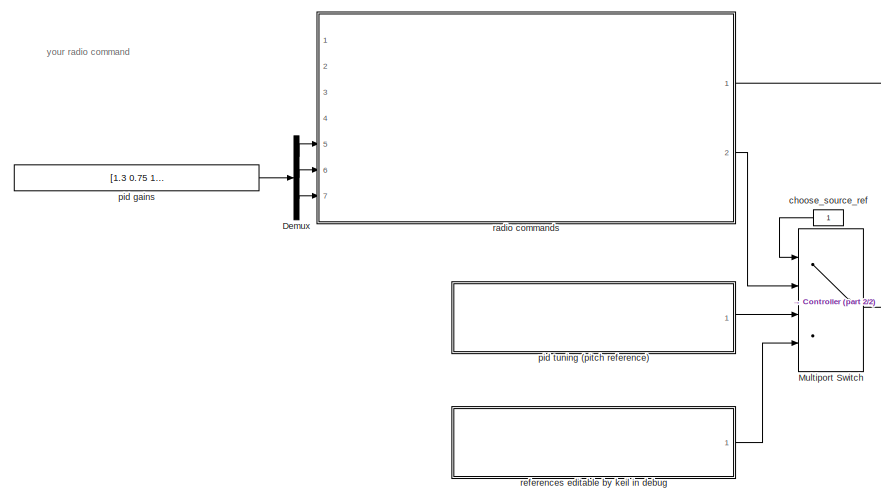
[diagram: root canvas - part 1/2, middle left region]
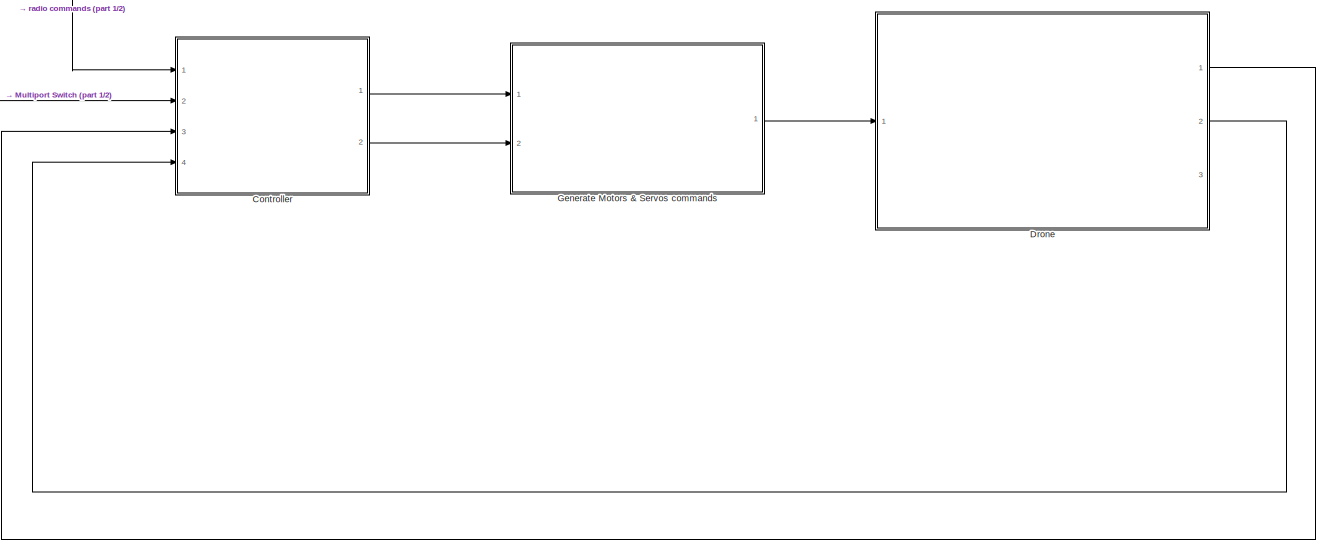
[diagram: root canvas - part 2/2, middle right region]
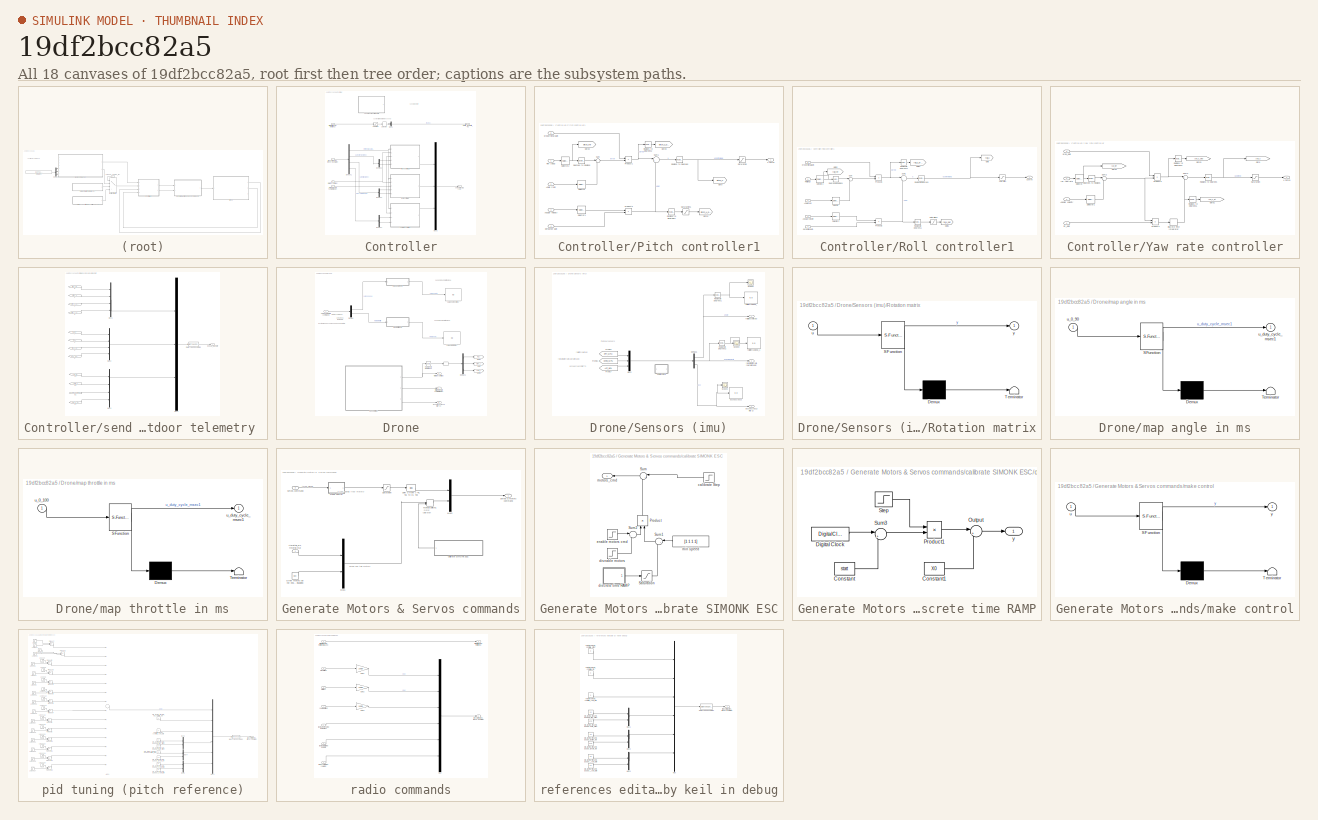
[diagram: thumbnail index - all 18 canvases of the model, root first then tree order]
MODEL slx_19df2bcc82a5
KIND model
BLOCK [SubSystem] Controller
  Ports = [4, 2]
  RequestExecContextInheritance = off
BLOCK [Demux] Controller/Demux1
  DisplayOption = bar
  Outputs = [3 2 2 2]
  Ports = [1, 4]
BLOCK [Demux] Controller/Demux2
  DisplayOption = bar
  Outputs = 2
  Ports = [1, 2]
BLOCK [Demux] Controller/Demux3
  DisplayOption = bar
  Outputs = 2
  Ports = [1, 2]
BLOCK [Demux] Controller/Demux4
  DisplayOption = bar
  Outputs = 2
  Ports = [1, 2]
BLOCK [Mux] Controller/Mux1
  DisplayOption = bar
  Inputs = 2
  Ports = [2, 1]
BLOCK [Mux] Controller/Mux2
  DisplayOption = bar
  Inputs = 3
  Ports = [3, 1]
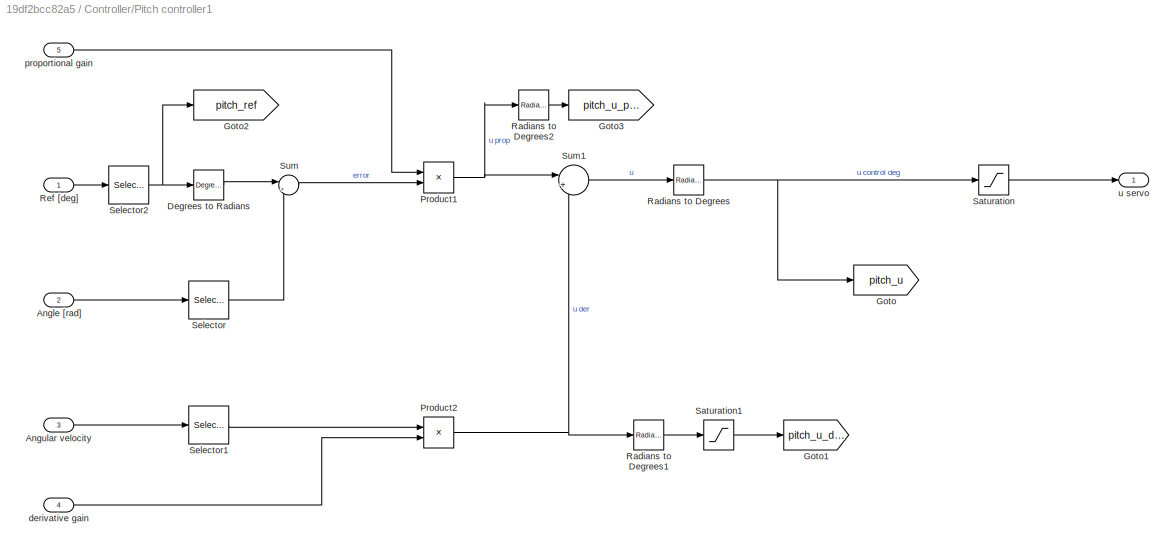
BLOCK [SubSystem] Controller/Pitch controller1
  Ports = [5, 1]
  RequestExecContextInheritance = off
BLOCK [Inport] Controller/Pitch controller1/Angle [rad]
  IconDisplay = Port number
  Port = 2
BLOCK [Inport] Controller/Pitch controller1/Angular velocity
  IconDisplay = Port number
  Port = 3
BLOCK [Reference] Controller/Pitch controller1/Degrees to Radians  REF=simulink_extras/Transformations/Degrees to
Radians
  Ports = [1, 1]
  SourceBlock = simulink_extras/Transformations/Degrees to\nRadians
  SourceType = DegreesToRadians
BLOCK [Goto] Controller/Pitch controller1/Goto
  GotoTag = pitch_u
  TagVisibility = global
BLOCK [Goto] Controller/Pitch controller1/Goto1
  GotoTag = pitch_u_der
  TagVisibility = global
BLOCK [Goto] Controller/Pitch controller1/Goto2
  GotoTag = pitch_ref
  TagVisibility = global
BLOCK [Goto] Controller/Pitch controller1/Goto3
  GotoTag = pitch_u_prop
  TagVisibility = global
BLOCK [Product] Controller/Pitch controller1/Product1
  InputSameDT = off
  OutDataTypeStr = Inherit: Inherit via internal rule
  Ports = [2, 1]
  RndMeth = Floor
  SaturateOnIntegerOverflow = off
BLOCK [Product] Controller/Pitch controller1/Product2
  InputSameDT = off
  OutDataTypeStr = Inherit: Inherit via internal rule
  Ports = [2, 1]
  RndMeth = Floor
  SaturateOnIntegerOverflow = off
BLOCK [Reference] Controller/Pitch controller1/Radians to Degrees  REF=simulink_extras/Transformations/Radians
to Degrees
  Ports = [1, 1]
  SourceBlock = simulink_extras/Transformations/Radians\nto Degrees
  SourceType = RadiansToDegrees
BLOCK [Reference] Controller/Pitch controller1/Radians to Degrees1  REF=simulink_extras/Transformations/Radians
to Degrees
  Ports = [1, 1]
  SourceBlock = simulink_extras/Transformations/Radians\nto Degrees
  SourceType = RadiansToDegrees
BLOCK [Reference] Controller/Pitch controller1/Radians to Degrees2  REF=simulink_extras/Transformations/Radians
to Degrees
  Ports = [1, 1]
  SourceBlock = simulink_extras/Transformations/Radians\nto Degrees
  SourceType = RadiansToDegrees
BLOCK [Inport] Controller/Pitch controller1/Ref [deg]
  IconDisplay = Port number
BLOCK [Saturate] Controller/Pitch controller1/Saturation
  InputPortMap = u0
  LowerLimit = -45
  Ports = [1, 1]
  UpperLimit = 45
BLOCK [Saturate] Controller/Pitch controller1/Saturation1
  InputPortMap = u0
  LowerLimit = -100
  Ports = [1, 1]
  UpperLimit = 100
BLOCK [Selector] Controller/Pitch controller1/Selector
  Indices = 2
  InputPortWidth = 3
  Ports = [1, 1]
BLOCK [Selector] Controller/Pitch controller1/Selector1
  Indices = 2
  InputPortWidth = 3
  Ports = [1, 1]
BLOCK [Selector] Controller/Pitch controller1/Selector2
  InputPortWidth = 3
  Ports = [1, 1]
BLOCK [Sum] Controller/Pitch controller1/Sum
  IconShape = round
  InputSameDT = off
  Inputs = |+-
  OutDataTypeStr = Inherit: Inherit via internal rule
  Ports = [2, 1]
  SaturateOnIntegerOverflow = off
BLOCK [Sum] Controller/Pitch controller1/Sum1
  IconShape = round
  InputSameDT = off
  Inputs = |+-
  OutDataTypeStr = Inherit: Inherit via internal rule
  Ports = [2, 1]
  SaturateOnIntegerOverflow = off
BLOCK [Inport] Controller/Pitch controller1/derivative gain
  IconDisplay = Port number
  Port = 4
BLOCK [Inport] Controller/Pitch controller1/proportional gain
  IconDisplay = Port number
  Port = 5
BLOCK [Outport] Controller/Pitch controller1/u servo
  IconDisplay = Port number
BLOCK [SubSystem] Controller/Roll controller1
  Ports = [5, 1]
  RequestExecContextInheritance = off
BLOCK [Inport] Controller/Roll controller1/Angle [rad]
  IconDisplay = Port number
  Port = 2
BLOCK [Inport] Controller/Roll controller1/Angular velocity
  IconDisplay = Port number
  Port = 3
BLOCK [Reference] Controller/Roll controller1/Degrees to Radians  REF=simulink_extras/Transformations/Degrees to
Radians
  Ports = [1, 1]
  SourceBlock = simulink_extras/Transformations/Degrees to\nRadians
  SourceType = DegreesToRadians
BLOCK [Goto] Controller/Roll controller1/Goto
  GotoTag = roll_u
  TagVisibility = global
BLOCK [Goto] Controller/Roll controller1/Goto1
  GotoTag = roll_u_der
  TagVisibility = global
BLOCK [Goto] Controller/Roll controller1/Goto2
  GotoTag = roll_ref
  TagVisibility = global
BLOCK [Goto] Controller/Roll controller1/Goto3
  GotoTag = roll_u_prop
  TagVisibility = global
BLOCK [Product] Controller/Roll controller1/Product1
  InputSameDT = off
  OutDataTypeStr = Inherit: Inherit via internal rule
  Ports = [2, 1]
  RndMeth = Floor
  SaturateOnIntegerOverflow = off
BLOCK [Product] Controller/Roll controller1/Product2
  InputSameDT = off
  OutDataTypeStr = Inherit: Inherit via internal rule
  Ports = [2, 1]
  RndMeth = Floor
  SaturateOnIntegerOverflow = off
BLOCK [Reference] Controller/Roll controller1/Radians to Degrees  REF=simulink_extras/Transformations/Radians
to Degrees
  Ports = [1, 1]
  SourceBlock = simulink_extras/Transformations/Radians\nto Degrees
  SourceType = RadiansToDegrees
BLOCK [Reference] Controller/Roll controller1/Radians to Degrees1  REF=simulink_extras/Transformations/Radians
to Degrees
  Ports = [1, 1]
  SourceBlock = simulink_extras/Transformations/Radians\nto Degrees
  SourceType = RadiansToDegrees
BLOCK [Reference] Controller/Roll controller1/Radians to Degrees2  REF=simulink_extras/Transformations/Radians
to Degrees
  Ports = [1, 1]
  SourceBlock = simulink_extras/Transformations/Radians\nto Degrees
  SourceType = RadiansToDegrees
BLOCK [Inport] Controller/Roll controller1/Ref [deg]
  IconDisplay = Port number
BLOCK [Saturate] Controller/Roll controller1/Saturation
  InputPortMap = u0
  LowerLimit = -45
  Ports = [1, 1]
  UpperLimit = 45
BLOCK [Saturate] Controller/Roll controller1/Saturation2
  InputPortMap = u0
  LowerLimit = -100
  Ports = [1, 1]
  UpperLimit = 100
BLOCK [Selector] Controller/Roll controller1/Selector
  InputPortWidth = 3
  Ports = [1, 1]
BLOCK [Selector] Controller/Roll controller1/Selector1
  InputPortWidth = 3
  Ports = [1, 1]
BLOCK [Selector] Controller/Roll controller1/Selector2
  Indices = 2
  InputPortWidth = 3
  Ports = [1, 1]
BLOCK [Sum] Controller/Roll controller1/Sum
  IconShape = round
  InputSameDT = off
  Inputs = |+-
  OutDataTypeStr = Inherit: Inherit via internal rule
  Ports = [2, 1]
  SaturateOnIntegerOverflow = off
BLOCK [Sum] Controller/Roll controller1/Sum1
  IconShape = round
  InputSameDT = off
  Inputs = |+-
  OutDataTypeStr = Inherit: Inherit via internal rule
  Ports = [2, 1]
  SaturateOnIntegerOverflow = off
BLOCK [Inport] Controller/Roll controller1/derivative gain
  IconDisplay = Port number
  Port = 4
BLOCK [Inport] Controller/Roll controller1/proportional gain
  IconDisplay = Port number
  Port = 5
BLOCK [Outport] Controller/Roll controller1/u servo
  IconDisplay = Port number
BLOCK [Saturate] Controller/Saturation
  InputPortMap = u0
  LowerLimit = 0
  Ports = [1, 1]
  UpperLimit = 100
BLOCK [Selector] Controller/Selector
  InputPortWidth = 2
  Ports = [1, 1]
BLOCK [SubSystem] Controller/Yaw rate controller
  Ports = [4, 1]
  RequestExecContextInheritance = off
BLOCK [Inport] Controller/Yaw rate controller/Angular velocity
  IconDisplay = Port number
  Port = 2
BLOCK [Reference] Controller/Yaw rate controller/Degrees to Radians  REF=simulink_extras/Transformations/Degrees to
Radians
  Ports = [1, 1]
  SourceBlock = simulink_extras/Transformations/Degrees to\nRadians
  SourceType = DegreesToRadians
BLOCK [DiscreteIntegrator] Controller/Yaw rate controller/Discrete-Time Integrator
  ICPrevOutput = DiscIntNeverNeededParam
  ICPrevScaledInput = DiscIntNeverNeededParam
  Ports = [1, 1]
  SampleTime = 0.005
BLOCK [Goto] Controller/Yaw rate controller/Goto
  GotoTag = yaw_u
  TagVisibility = global
BLOCK [Goto] Controller/Yaw rate controller/Goto1
  GotoTag = yaw_u_int
  TagVisibility = global
BLOCK [Goto] Controller/Yaw rate controller/Goto2
  GotoTag = yaw_ref
  TagVisibility = global
BLOCK [Goto] Controller/Yaw rate controller/Goto3
  GotoTag = yaw_u_prop
  TagVisibility = global
BLOCK [Product] Controller/Yaw rate controller/Product3
  InputSameDT = off
  OutDataTypeStr = Inherit: Inherit via internal rule
  Ports = [2, 1]
  SaturateOnIntegerOverflow = off
BLOCK [Product] Controller/Yaw rate controller/Product4
  InputSameDT = off
  OutDataTypeStr = Inherit: Inherit via internal rule
  Ports = [2, 1]
  SaturateOnIntegerOverflow = off
BLOCK [Reference] Controller/Yaw rate controller/Radians to Degrees  REF=simulink_extras/Transformations/Radians
to Degrees
  Ports = [1, 1]
  SourceBlock = simulink_extras/Transformations/Radians\nto Degrees
  SourceType = RadiansToDegrees
BLOCK [Reference] Controller/Yaw rate controller/Radians to Degrees1  REF=simulink_extras/Transformations/Radians
to Degrees
  Ports = [1, 1]
  SourceBlock = simulink_extras/Transformations/Radians\nto Degrees
  SourceType = RadiansToDegrees
BLOCK [Reference] Controller/Yaw rate controller/Radians to Degrees2  REF=simulink_extras/Transformations/Radians
to Degrees
  Ports = [1, 1]
  SourceBlock = simulink_extras/Transformations/Radians\nto Degrees
  SourceType = RadiansToDegrees
BLOCK [Saturate] Controller/Yaw rate controller/Saturation
  InputPortMap = u0
  LowerLimit = -45
  Ports = [1, 1]
  UpperLimit = 45
BLOCK [Selector] Controller/Yaw rate controller/Selector
  Indices = 3
  InputPortWidth = 3
  Ports = [1, 1]
BLOCK [Selector] Controller/Yaw rate controller/Selector1
  Indices = 3
  InputPortWidth = 3
  Ports = [1, 1]
BLOCK [Sum] Controller/Yaw rate controller/Sum2
  IconShape = round
  InputSameDT = off
  Inputs = |+-
  OutDataTypeStr = Inherit: Inherit via internal rule
  Ports = [2, 1]
  SaturateOnIntegerOverflow = off
BLOCK [Sum] Controller/Yaw rate controller/Sum3
  IconShape = round
  InputSameDT = off
  Inputs = |++
  OutDataTypeStr = Inherit: Inherit via internal rule
  Ports = [2, 1]
  SaturateOnIntegerOverflow = off
BLOCK [Inport] Controller/Yaw rate controller/int_gain
  IconDisplay = Port number
  Port = 4
BLOCK [Inport] Controller/Yaw rate controller/prop_gain
  IconDisplay = Port number
  Port = 3
BLOCK [Inport] Controller/Yaw rate controller/ref yaw rate
  IconDisplay = Port number
BLOCK [Outport] Controller/Yaw rate controller/u servo
  IconDisplay = Port number
BLOCK [Inport] Controller/[ref controllo pitch, ref controllo roll, ref controllo yaw rate, guadagno derivativo pitch, guadagno proporzionale pitch, guadagno derivativo roll, guadagno proporzionale roll, prop yaw rate, int yaw rate]
  IconDisplay = Port number
  Port = 2
BLOCK [Inport] Controller/[ref throttle m1, ref throttle m2]
  IconDisplay = Port number
BLOCK [Inport] Controller/roll pitch yaw [rad]
  IconDisplay = Port number
  Port = 3
BLOCK [Inport] Controller/roll rate - pitch rate - yaw rate [rad//s]
  IconDisplay = Port number
  Port = 4
BLOCK [SubSystem] Controller/send to outdoor telemetry 
  Ports = [0, 1]
  RequestExecContextInheritance = off
BLOCK [From] Controller/send to outdoor telemetry / 1
  GotoTag = pitch_u
  TagVisibility = global
BLOCK [From] Controller/send to outdoor telemetry / 2
  GotoTag = pitch_u_prop
  TagVisibility = global
BLOCK [From] Controller/send to outdoor telemetry / 3
  GotoTag = pitch_ref
  TagVisibility = global
BLOCK [From] Controller/send to outdoor telemetry / 4
  GotoTag = pitch_u_der
  TagVisibility = global
BLOCK [From] Controller/send to outdoor telemetry / 5
  GotoTag = roll_u
  TagVisibility = global
BLOCK [From] Controller/send to outdoor telemetry / 6
  GotoTag = roll_u_prop
  TagVisibility = global
BLOCK [From] Controller/send to outdoor telemetry / 7
  GotoTag = roll_ref
  TagVisibility = global
BLOCK [From] Controller/send to outdoor telemetry / 8 
  GotoTag = roll_u_der
  TagVisibility = global
BLOCK [From] Controller/send to outdoor telemetry / 8 1
  GotoTag = yaw_u_prop
  TagVisibility = global
BLOCK [From] Controller/send to outdoor telemetry / 8 2
  GotoTag = yaw_u
  TagVisibility = global
BLOCK [From] Controller/send to outdoor telemetry / 8 3
  GotoTag = yaw_ref
  TagVisibility = global
BLOCK [From] Controller/send to outdoor telemetry / 8 4
  GotoTag = yaw_u_int
  TagVisibility = global
BLOCK [DataTypeConversion] Controller/send to outdoor telemetry /Data Type Conversion
  OutDataTypeStr = single
  RndMeth = Floor
  SaturateOnIntegerOverflow = off
BLOCK [Mux] Controller/send to outdoor telemetry /Mux1
  DisplayOption = bar
  Inputs = [1,1,1,1]
  Ports = [4, 1]
BLOCK [Mux] Controller/send to outdoor telemetry /Mux2
  DisplayOption = bar
  Inputs = [1,1,1,1]
  Ports = [4, 1]
BLOCK [Mux] Controller/send to outdoor telemetry /Mux3
  DisplayOption = bar
  Ports = [4, 1]
BLOCK [Mux] Controller/send to outdoor telemetry /Mux4
  DisplayOption = bar
  Inputs = [4 4 4]
  Ports = [3, 1]
BLOCK [Outport] Controller/send to outdoor telemetry /debug_telemetry
  IconDisplay = Port number
  InitialOutput = 0
  OutputWhenDisabled = reset
BLOCK [Outport] Controller/servo [pitch, roll, yaw]
  IconDisplay = Port number
  Port = 2
BLOCK [Outport] Controller/throttle_m1, throttle_m2
  IconDisplay = Port number
BLOCK [Demux] Demux
  DisplayOption = bar
  Outputs = [2 2 2]
  Ports = [1, 3]
BLOCK [SubSystem] Drone
  Ports = [1, 3]
  RequestExecContextInheritance = off
BLOCK [DataTypeConversion] Drone/  
  OutDataTypeStr = double
  RndMeth = Floor
  SaturateOnIntegerOverflow = off
BLOCK [Demux] Drone/Demux
  DisplayOption = bar
  Outputs = [4 4]
  Ports = [1, 2]
BLOCK [Demux] Drone/Demux1
  DisplayOption = bar
  Outputs = 3
  Ports = [1, 3]
BLOCK [Goto] Drone/Goto
  GotoTag = pitch_y
  TagVisibility = global
BLOCK [Goto] Drone/Goto1
  GotoTag = roll_y
  TagVisibility = global
BLOCK [Goto] Drone/Goto2
  GotoTag = yaw_y
  TagVisibility = global
BLOCK [Reference] Drone/Radians to Degrees1  REF=simulink_extras/Transformations/Radians
to Degrees
  Ports = [1, 1]
  SourceBlock = simulink_extras/Transformations/Radians\nto Degrees
  SourceType = RadiansToDegrees
BLOCK [SubSystem] Drone/Sensors (imu)
  Ports = [0, 3]
  RequestExecContextInheritance = off
BLOCK [Demux] Drone/Sensors (imu)/Demux6
  DisplayOption = bar
  Outputs = [3 3 3]
  Ports = [1, 3]
BLOCK [From] Drone/Sensors (imu)/From17
  GotoTag = ACC_MPU
BLOCK [From] Drone/Sensors (imu)/From21
  GotoTag = GYRO_MPU
BLOCK [From] Drone/Sensors (imu)/From22
  GotoTag = RPY_MPU
BLOCK [Mux] Drone/Sensors (imu)/Mux2
  DisplayOption = bar
  Inputs = [3 3 3 ]
  Ports = [3, 1]
BLOCK [Reference] Drone/Sensors (imu)/Radians to Degrees1  REF=simulink_extras/Transformations/Radians
to Degrees
  Ports = [1, 1]
  SourceBlock = simulink_extras/Transformations/Radians\nto Degrees
  SourceType = RadiansToDegrees
BLOCK [Reference] Drone/Sensors (imu)/Radians to Degrees2  REF=simulink_extras/Transformations/Radians
to Degrees
  Ports = [1, 1]
  SourceBlock = simulink_extras/Transformations/Radians\nto Degrees
  SourceType = RadiansToDegrees
BLOCK [SubSystem] Drone/Sensors (imu)/Rotation matrix
  Commented = on
  ErrorFcn = Stateflow.Translate.translate
  PermitHierarchicalResolution = ExplicitOnly
  Ports = [1, 1]
  RequestExecContextInheritance = off
  SFBlockType = MATLAB Function
  TreatAsAtomicUnit = on
BLOCK [Demux] Drone/Sensors (imu)/Rotation matrix/ Demux 
  Outputs = 1
  Ports = [1, 1]
BLOCK [S-Function] Drone/Sensors (imu)/Rotation matrix/ SFunction 
  EnableBusSupport = on
  FunctionName = sf_sfun
  PortCounts = [1 2]
  Ports = [1, 2]
  Tag = Stateflow S-Function ducted_fan 177
BLOCK [Terminator] Drone/Sensors (imu)/Rotation matrix/ Terminator 
BLOCK [Inport] Drone/Sensors (imu)/Rotation matrix/u
  IconDisplay = Port number
BLOCK [Outport] Drone/Sensors (imu)/Rotation matrix/y
  IconDisplay = Port number
BLOCK [Scope] Drone/Sensors (imu)/Scope1
  DataFormat = StructureWithTime
  Floating = off
  LegendLocations = 0.63683      0.6304     0.26852     0.21618
  NumInputPorts = 1
  Ports = [1]
  SampleTime = 0
  SaveName = ScopeData4
  ShowLegends = on
  TickLabels = on
  YMax = 65
  YMin = -35
BLOCK [Scope] Drone/Sensors (imu)/Scope2
  DataFormat = StructureWithTime
  Floating = off
  LegendLocations = 0.63683      0.6304     0.26852     0.21618
  NumInputPorts = 1
  Ports = [1]
  SampleTime = 0
  SaveName = ScopeData1
  ShowLegends = on
  TickLabels = on
  YMax = 65
  YMin = -35
BLOCK [Scope] Drone/Sensors (imu)/Scope3
  DataFormat = StructureWithTime
  Floating = off
  LegendLocations = 0.63683      0.6304     0.26852     0.21618
  NumInputPorts = 1
  Ports = [1]
  SampleTime = 0
  SaveName = ScopeData3
  ShowLegends = on
  TickLabels = on
  YMax = 65
  YMin = -35
BLOCK [Display] Drone/Sensors (imu)/acc x acc y acc z
  Decimation = 1
  Ports = [1]
BLOCK [Outport] Drone/Sensors (imu)/acc x acc y acc z [m//s^2]
  IconDisplay = Port number
  Port = 3
BLOCK [Outport] Drone/Sensors (imu)/roll pitch yaw [rad]
  IconDisplay = Port number
BLOCK [Display] Drone/Sensors (imu)/roll pitch yaw deg_
  Decimation = 1
  Ports = [1]
BLOCK [Display] Drone/Sensors (imu)/roll pitch yaw deg_1
  Decimation = 1
  Ports = [1]
BLOCK [Outport] Drone/Sensors (imu)/roll rate pitch rate yaw rate [rad//s]
  IconDisplay = Port number
  Port = 2
BLOCK [Outport] Drone/acc x - acc y - acc z [m//s^2]
  IconDisplay = Port number
  Port = 3
BLOCK [SubSystem] Drone/map angle in ms
  ErrorFcn = Stateflow.Translate.translate
  PermitHierarchicalResolution = ExplicitOnly
  Ports = [1, 1]
  RequestExecContextInheritance = off
  SFBlockType = MATLAB Function
  TreatAsAtomicUnit = on
BLOCK [Demux] Drone/map angle in ms/ Demux 
  Outputs = 1
  Ports = [1, 1]
BLOCK [S-Function] Drone/map angle in ms/ SFunction 
  EnableBusSupport = on
  FunctionName = sf_sfun
  PortCounts = [1 2]
  Ports = [1, 2]
  Tag = Stateflow S-Function ducted_fan 174
BLOCK [Terminator] Drone/map angle in ms/ Terminator 
BLOCK [Inport] Drone/map angle in ms/u_0_90
  IconDisplay = Port number
BLOCK [Outport] Drone/map angle in ms/u_duty_cycle_msec1
  IconDisplay = Port number
BLOCK [SubSystem] Drone/map throttle in ms
  ErrorFcn = Stateflow.Translate.translate
  PermitHierarchicalResolution = ExplicitOnly
  Ports = [1, 1]
  RequestExecContextInheritance = off
  SFBlockType = MATLAB Function
  TreatAsAtomicUnit = on
BLOCK [Demux] Drone/map throttle in ms/ Demux 
  Outputs = 1
  Ports = [1, 1]
BLOCK [S-Function] Drone/map throttle in ms/ SFunction 
  EnableBusSupport = on
  FunctionName = sf_sfun
  PortCounts = [1 2]
  Ports = [1, 2]
  Tag = Stateflow S-Function ducted_fan 175
BLOCK [Terminator] Drone/map throttle in ms/ Terminator 
BLOCK [Inport] Drone/map throttle in ms/u_0_100
  IconDisplay = Port number
BLOCK [Outport] Drone/map throttle in ms/u_duty_cycle_msec1
  IconDisplay = Port number
BLOCK [Outport] Drone/roll pitch yaw [rad]
  IconDisplay = Port number
BLOCK [Outport] Drone/roll rate - pitch rate - yaw rate [rad//s]
  IconDisplay = Port number
  Port = 2
BLOCK [Inport] Drone/servos & motors command
  IconDisplay = Port number
BLOCK [Display] Drone/value motors [ms]
  Decimation = 1
  Ports = [1]
BLOCK [Display] Drone/value servos [ms]
  Decimation = 1
  Ports = [1]
BLOCK [SubSystem] Generate Motors & Servos commands
  Ports = [2, 1]
  RequestExecContextInheritance = off
BLOCK [ManualSwitch] Generate Motors & Servos commands/Manual Switch1
BLOCK [Mux] Generate Motors & Servos commands/Mux1
  DisplayOption = bar
  Inputs = [2 2]
  Ports = [2, 1]
BLOCK [Mux] Generate Motors & Servos commands/Mux2
  DisplayOption = bar
  Inputs = 2
  Ports = [2, 1]
BLOCK [Constant] Generate Motors & Servos commands/Other motors do not exist. they are disabled!
  Value = [0 0]
BLOCK [Saturate] Generate Motors & Servos commands/Saturation
  InputPortMap = u0
  LowerLimit = -45
  Ports = [1, 1]
  UpperLimit = 45
BLOCK [Bias] Generate Motors & Servos commands/Shift u from [-45, 45] to [0, 90]
  Bias = 45
  SaturateOnIntegerOverflow = off
BLOCK [Inport] Generate Motors & Servos commands/[throttle_m1, throttle_m2]
  IconDisplay = Port number
BLOCK [SubSystem] Generate Motors & Servos commands/calibrate SIMONK ESC
  Ports = [0, 1]
  RequestExecContextInheritance = off
BLOCK [Product] Generate Motors & Servos commands/calibrate SIMONK ESC/Product
  InputSameDT = off
  OutDataTypeStr = Inherit: Inherit via internal rule
  Ports = [2, 1]
  SaturateOnIntegerOverflow = off
BLOCK [Saturate] Generate Motors & Servos commands/calibrate SIMONK ESC/Saturation
  InputPortMap = u0
  LowerLimit = 0
  Ports = [1, 1]
  UpperLimit = 99
BLOCK [Sum] Generate Motors & Servos commands/calibrate SIMONK ESC/Sum
  IconShape = round
  InputSameDT = off
  Inputs = |++
  OutDataTypeStr = Inherit: Inherit via internal rule
  Ports = [2, 1]
  SaturateOnIntegerOverflow = off
BLOCK [Sum] Generate Motors & Servos commands/calibrate SIMONK ESC/Sum1
  IconShape = round
  InputSameDT = off
  Inputs = |++
  OutDataTypeStr = Inherit: Inherit via internal rule
  Ports = [2, 1]
  SaturateOnIntegerOverflow = off
BLOCK [Sum] Generate Motors & Servos commands/calibrate SIMONK ESC/Sum2
  IconShape = round
  InputSameDT = off
  Inputs = |++
  OutDataTypeStr = Inherit: Inherit via internal rule
  Ports = [2, 1]
  SaturateOnIntegerOverflow = off
BLOCK [Step] Generate Motors & Servos commands/calibrate SIMONK ESC/calibrate Step
  After = [0 0 0 0]
  Before = [100 100 100 100]-1
  SampleTime = ST
  Time = 10
  ZeroCross = off
BLOCK [SubSystem] Generate Motors & Servos commands/calibrate SIMONK ESC/discrete time RAMP
  Ports = [0, 1]
  RequestExecContextInheritance = off
BLOCK [Constant] Generate Motors & Servos commands/calibrate SIMONK ESC/discrete time RAMP/Constant
  DisableCoverage = on
  OutDataTypeStr = Inherit: Inherit via back propagation
  SampleTime = ST
  Value = start
BLOCK [Constant] Generate Motors & Servos commands/calibrate SIMONK ESC/discrete time RAMP/Constant1
  DisableCoverage = on
  OutDataTypeStr = Inherit: Inherit via back propagation
  SampleTime = ST
  Value = X0
BLOCK [DigitalClock] Generate Motors & Servos commands/calibrate SIMONK ESC/discrete time RAMP/Digital Clock
  SampleTime = ST
BLOCK [Sum] Generate Motors & Servos commands/calibrate SIMONK ESC/discrete time RAMP/Output
  IconShape = round
  Inputs = |++
  Ports = [2, 1]
BLOCK [Product] Generate Motors & Servos commands/calibrate SIMONK ESC/discrete time RAMP/Product1
  DisableCoverage = on
  Ports = [2, 1]
  RndMeth = Floor
BLOCK [Step] Generate Motors & Servos commands/calibrate SIMONK ESC/discrete time RAMP/Step
  After = slope
  DisableCoverage = on
  SampleTime = ST
  Time = start
  ZeroCross = off
BLOCK [Sum] Generate Motors & Servos commands/calibrate SIMONK ESC/discrete time RAMP/Sum3
  DisableCoverage = on
  IconShape = round
  Inputs = |+-
  Ports = [2, 1]
BLOCK [Outport] Generate Motors & Servos commands/calibrate SIMONK ESC/discrete time RAMP/y
  IconDisplay = Port number
BLOCK [Step] Generate Motors & Servos commands/calibrate SIMONK ESC/disnable motors
  After = -1
  SampleTime = ST
  Time = 60
  ZeroCross = off
BLOCK [Step] Generate Motors & Servos commands/calibrate SIMONK ESC/enable motors cmd
  SampleTime = ST
  Time = 20
  ZeroCross = off
BLOCK [Constant] Generate Motors & Servos commands/calibrate SIMONK ESC/min speed
  Value = [1 1 1 1]
BLOCK [Outport] Generate Motors & Servos commands/calibrate SIMONK ESC/motors_cmd
  IconDisplay = Port number
BLOCK [SubSystem] Generate Motors & Servos commands/make control
  ErrorFcn = Stateflow.Translate.translate
  PermitHierarchicalResolution = ExplicitOnly
  Ports = [1, 1]
  RequestExecContextInheritance = off
  SFBlockType = MATLAB Function
  TreatAsAtomicUnit = on
BLOCK [Demux] Generate Motors & Servos commands/make control/ Demux 
  Outputs = 1
  Ports = [1, 1]
BLOCK [S-Function] Generate Motors & Servos commands/make control/ SFunction 
  EnableBusSupport = on
  FunctionName = sf_sfun
  PortCounts = [1 2]
  Ports = [1, 2]
  Tag = Stateflow S-Function ducted_fan 176
BLOCK [Terminator] Generate Motors & Servos commands/make control/ Terminator 
BLOCK [Inport] Generate Motors & Servos commands/make control/u
  IconDisplay = Port number
BLOCK [Outport] Generate Motors & Servos commands/make control/y
  IconDisplay = Port number
BLOCK [Outport] Generate Motors & Servos commands/servos & motors command
  IconDisplay = Port number
BLOCK [Inport] Generate Motors & Servos commands/servos command
  IconDisplay = Port number
  Port = 2
BLOCK [MultiPortSwitch] Multiport Switch
  InputSameDT = off
  Ports = [4, 1]
  SaturateOnIntegerOverflow = off
BLOCK [Constant] choose_source_ref
BLOCK [Constant] pid gains
  Value = [1.3 0.75 1.3 0.75 1.6 0.1]
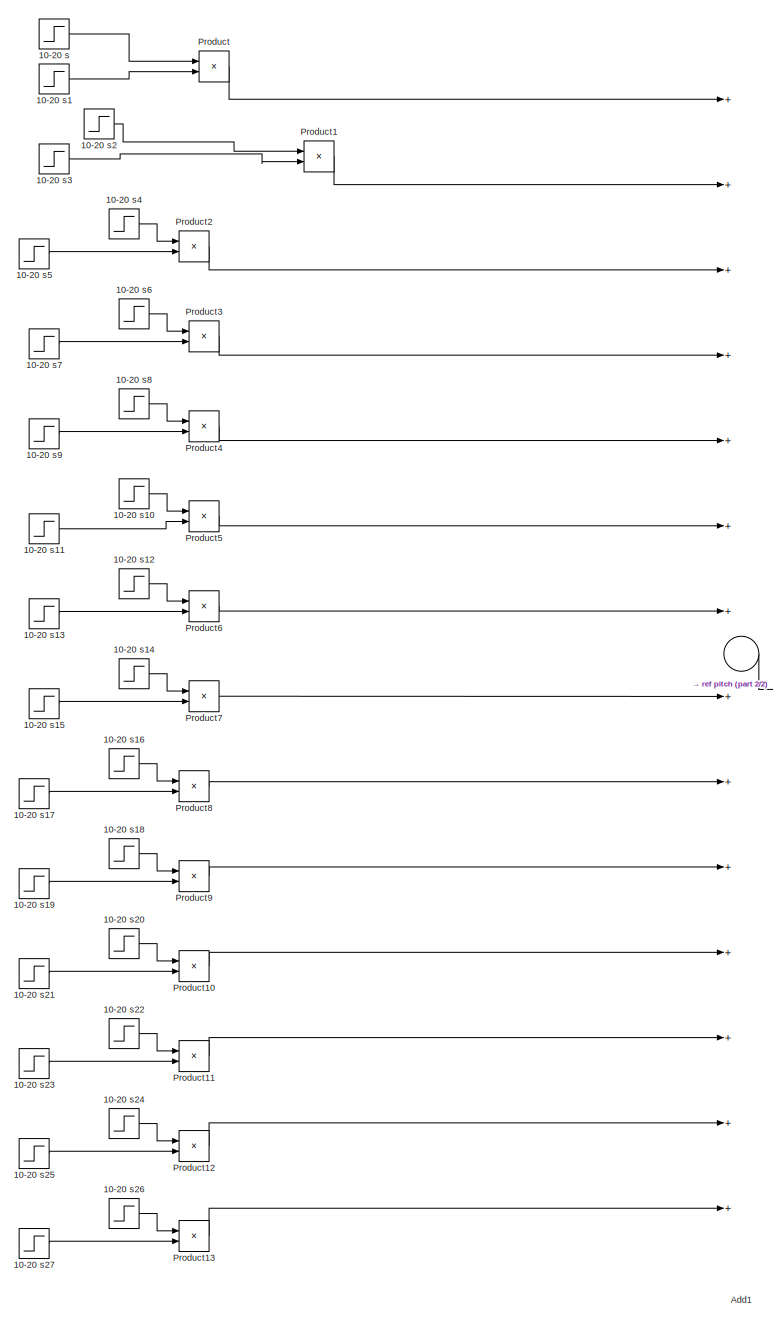
[diagram: pid tuning (pitch reference) - part 1/2, left side, full height]
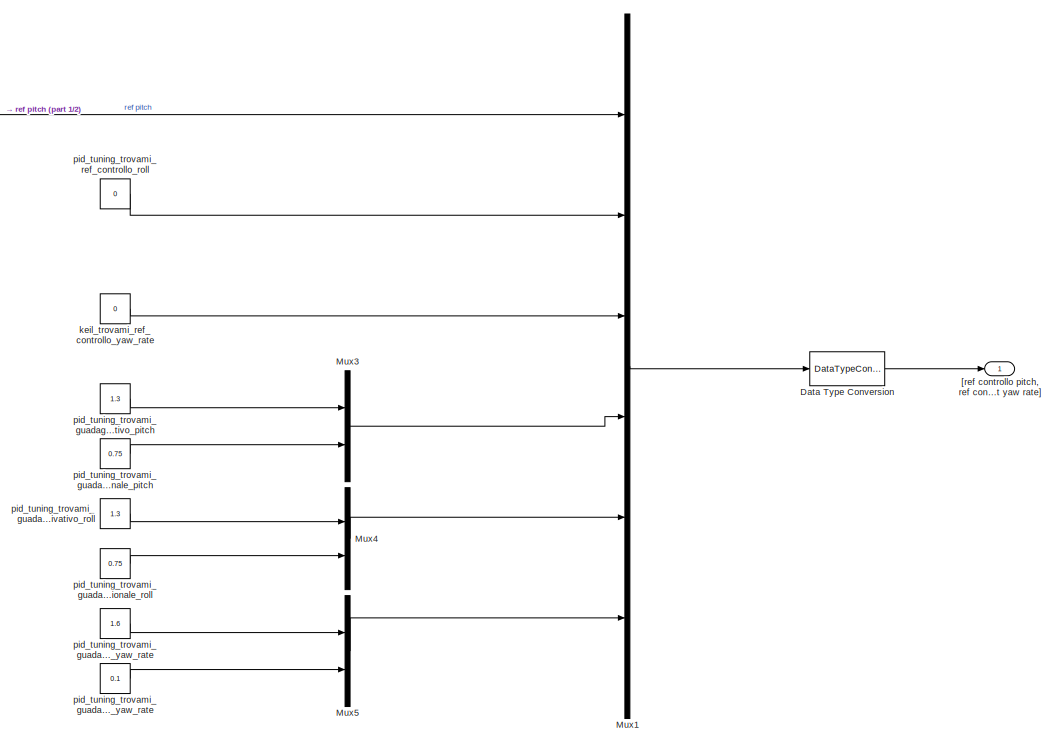
[diagram: pid tuning (pitch reference) - part 2/2, bottom right region]
BLOCK [SubSystem] pid tuning (pitch reference)
  Ports = [0, 1]
  RequestExecContextInheritance = off
BLOCK [Step] pid tuning (pitch reference)/10-20 s
  After = 10
  Time = 20
BLOCK [Step] pid tuning (pitch reference)/10-20 s1
  After = 0
  Before = 1
  Time = 30
BLOCK [Step] pid tuning (pitch reference)/10-20 s10
  After = 0
  Time = 70
BLOCK [Step] pid tuning (pitch reference)/10-20 s11
  After = 0
  Before = 1
  Time = 80
BLOCK [Step] pid tuning (pitch reference)/10-20 s12
  After = -10
  Time = 80
BLOCK [Step] pid tuning (pitch reference)/10-20 s13
  After = 0
  Before = 1
  Time = 90
BLOCK [Step] pid tuning (pitch reference)/10-20 s14
  After = 0
  Time = 90
BLOCK [Step] pid tuning (pitch reference)/10-20 s15
  After = 0
  Before = 1
  Time = 100
BLOCK [Step] pid tuning (pitch reference)/10-20 s16
  After = -20
  Time = 100
BLOCK [Step] pid tuning (pitch reference)/10-20 s17
  After = 0
  Before = 1
  Time = 110
BLOCK [Step] pid tuning (pitch reference)/10-20 s18
  After = 0
  Time = 110
BLOCK [Step] pid tuning (pitch reference)/10-20 s19
  After = 0
  Before = 1
  Time = 120
BLOCK [Step] pid tuning (pitch reference)/10-20 s2
  After = 0
  Time = 30
BLOCK [Step] pid tuning (pitch reference)/10-20 s20
  After = -30
  Time = 120
BLOCK [Step] pid tuning (pitch reference)/10-20 s21
  After = 0
  Before = 1
  Time = 130
BLOCK [Step] pid tuning (pitch reference)/10-20 s22
  After = 0
  Time = 130
BLOCK [Step] pid tuning (pitch reference)/10-20 s23
  After = 0
  Before = 1
  Time = 140
BLOCK [Step] pid tuning (pitch reference)/10-20 s24
  After = 40
  Time = 140
BLOCK [Step] pid tuning (pitch reference)/10-20 s25
  After = 0
  Before = 1
  Time = 150
BLOCK [Step] pid tuning (pitch reference)/10-20 s26
  After = -40
  Time = 150
BLOCK [Step] pid tuning (pitch reference)/10-20 s27
  After = 0
  Before = 1
  Time = 160
BLOCK [Step] pid tuning (pitch reference)/10-20 s3
  After = 0
  Before = 1
  Time = 40
BLOCK [Step] pid tuning (pitch reference)/10-20 s4
  After = 20
  Time = 40
BLOCK [Step] pid tuning (pitch reference)/10-20 s5
  After = 0
  Before = 1
  Time = 50
BLOCK [Step] pid tuning (pitch reference)/10-20 s6
  After = 0
  Time = 50
BLOCK [Step] pid tuning (pitch reference)/10-20 s7
  After = 0
  Before = 1
  Time = 60
BLOCK [Step] pid tuning (pitch reference)/10-20 s8
  After = 30
  Time = 60
BLOCK [Step] pid tuning (pitch reference)/10-20 s9
  After = 0
  Before = 1
  Time = 70
BLOCK [Sum] pid tuning (pitch reference)/Add1
  InputSameDT = off
  Inputs = ++++++++++++++
  OutDataTypeStr = Inherit: Inherit via internal rule
  Ports = [14, 1]
  SaturateOnIntegerOverflow = off
BLOCK [DataTypeConversion] pid tuning (pitch reference)/Data Type Conversion
  OutDataTypeStr = single
  RndMeth = Floor
  SaturateOnIntegerOverflow = off
BLOCK [Mux] pid tuning (pitch reference)/Mux1
  DisplayOption = bar
  Inputs = 6
  Ports = [6, 1]
BLOCK [Mux] pid tuning (pitch reference)/Mux3
  DisplayOption = bar
  Inputs = 2
  Ports = [2, 1]
BLOCK [Mux] pid tuning (pitch reference)/Mux4
  DisplayOption = bar
  Inputs = 2
  Ports = [2, 1]
BLOCK [Mux] pid tuning (pitch reference)/Mux5
  DisplayOption = bar
  Inputs = 2
  Ports = [2, 1]
BLOCK [Product] pid tuning (pitch reference)/Product
  InputSameDT = off
  OutDataTypeStr = Inherit: Inherit via internal rule
  Ports = [2, 1]
  RndMeth = Floor
  SaturateOnIntegerOverflow = off
BLOCK [Product] pid tuning (pitch reference)/Product1
  InputSameDT = off
  OutDataTypeStr = Inherit: Inherit via internal rule
  Ports = [2, 1]
  RndMeth = Floor
  SaturateOnIntegerOverflow = off
BLOCK [Product] pid tuning (pitch reference)/Product10
  InputSameDT = off
  OutDataTypeStr = Inherit: Inherit via internal rule
  Ports = [2, 1]
  RndMeth = Floor
  SaturateOnIntegerOverflow = off
BLOCK [Product] pid tuning (pitch reference)/Product11
  InputSameDT = off
  OutDataTypeStr = Inherit: Inherit via internal rule
  Ports = [2, 1]
  RndMeth = Floor
  SaturateOnIntegerOverflow = off
BLOCK [Product] pid tuning (pitch reference)/Product12
  InputSameDT = off
  OutDataTypeStr = Inherit: Inherit via internal rule
  Ports = [2, 1]
  RndMeth = Floor
  SaturateOnIntegerOverflow = off
BLOCK [Product] pid tuning (pitch reference)/Product13
  InputSameDT = off
  OutDataTypeStr = Inherit: Inherit via internal rule
  Ports = [2, 1]
  RndMeth = Floor
  SaturateOnIntegerOverflow = off
BLOCK [Product] pid tuning (pitch reference)/Product2
  InputSameDT = off
  OutDataTypeStr = Inherit: Inherit via internal rule
  Ports = [2, 1]
  RndMeth = Floor
  SaturateOnIntegerOverflow = off
BLOCK [Product] pid tuning (pitch reference)/Product3
  InputSameDT = off
  OutDataTypeStr = Inherit: Inherit via internal rule
  Ports = [2, 1]
  RndMeth = Floor
  SaturateOnIntegerOverflow = off
BLOCK [Product] pid tuning (pitch reference)/Product4
  InputSameDT = off
  OutDataTypeStr = Inherit: Inherit via internal rule
  Ports = [2, 1]
  RndMeth = Floor
  SaturateOnIntegerOverflow = off
BLOCK [Product] pid tuning (pitch reference)/Product5
  InputSameDT = off
  OutDataTypeStr = Inherit: Inherit via internal rule
  Ports = [2, 1]
  RndMeth = Floor
  SaturateOnIntegerOverflow = off
BLOCK [Product] pid tuning (pitch reference)/Product6
  InputSameDT = off
  OutDataTypeStr = Inherit: Inherit via internal rule
  Ports = [2, 1]
  RndMeth = Floor
  SaturateOnIntegerOverflow = off
BLOCK [Product] pid tuning (pitch reference)/Product7
  InputSameDT = off
  OutDataTypeStr = Inherit: Inherit via internal rule
  Ports = [2, 1]
  RndMeth = Floor
  SaturateOnIntegerOverflow = off
BLOCK [Product] pid tuning (pitch reference)/Product8
  InputSameDT = off
  OutDataTypeStr = Inherit: Inherit via internal rule
  Ports = [2, 1]
  RndMeth = Floor
  SaturateOnIntegerOverflow = off
BLOCK [Product] pid tuning (pitch reference)/Product9
  InputSameDT = off
  OutDataTypeStr = Inherit: Inherit via internal rule
  Ports = [2, 1]
  RndMeth = Floor
  SaturateOnIntegerOverflow = off
BLOCK [Outport] pid tuning (pitch reference)/[ref controllo pitch, ref controllo roll, ref controllo yaw rate, guadagno derivativo pitch, guadagno proporzionale pitch, guadagno derivativo roll, guadagno proporzionale roll, prop yaw rate, int yaw rate]
  IconDisplay = Port number
BLOCK [Constant] pid tuning (pitch reference)/keil_trovami_ref_controllo_yaw_rate
  OutDataTypeStr = double
  SampleTime = -1
  Value = 0
BLOCK [Constant] pid tuning (pitch reference)/pid_tuning_trovami_guadagno_derivativo_pitch
  SampleTime = -1
  Value = 1.3
BLOCK [Constant] pid tuning (pitch reference)/pid_tuning_trovami_guadagno_derivativo_roll
  SampleTime = -1
  Value = 1.3
BLOCK [Constant] pid tuning (pitch reference)/pid_tuning_trovami_guadagno_integrale_yaw_rate
  SampleTime = -1
  Value = 0.1
BLOCK [Constant] pid tuning (pitch reference)/pid_tuning_trovami_guadagno_proporzionale_pitch
  SampleTime = -1
  Value = 0.75
BLOCK [Constant] pid tuning (pitch reference)/pid_tuning_trovami_guadagno_proporzionale_roll
  SampleTime = -1
  Value = 0.75
BLOCK [Constant] pid tuning (pitch reference)/pid_tuning_trovami_guadagno_proporzionale_yaw_rate
  SampleTime = -1
  Value = 1.6
BLOCK [Constant] pid tuning (pitch reference)/pid_tuning_trovami_ref_controllo_roll
  SampleTime = -1
  Value = 0
BLOCK [SubSystem] radio commands
  Ports = [7, 2]
  RequestExecContextInheritance = off
BLOCK [Gain] radio commands/Gain1
  Gain = 180/pi
  OutDataTypeStr = Inherit: Inherit via internal rule
  ParamDataTypeStr = Inherit: Inherit via internal rule
  SaturateOnIntegerOverflow = off
BLOCK [Gain] radio commands/Gain2
  Gain = 180/pi
  OutDataTypeStr = Inherit: Inherit via internal rule
  ParamDataTypeStr = Inherit: Inherit via internal rule
  SaturateOnIntegerOverflow = off
BLOCK [Gain] radio commands/Gain3
  Gain = 180/pi
  OutDataTypeStr = Inherit: Inherit via internal rule
  ParamDataTypeStr = Inherit: Inherit via internal rule
  SaturateOnIntegerOverflow = off
BLOCK [Mux] radio commands/Mux
  DisplayOption = bar
  Inputs = [1 1 1 2 2 2]
  Ports = [6, 1]
BLOCK [Inport] radio commands/[der gain pitch, prop gain pitch]
  IconDisplay = Port number
  Port = 5
BLOCK [Inport] radio commands/[der gain roll, prop gain roll]
  IconDisplay = Port number
  Port = 6
BLOCK [Inport] radio commands/[prop yaw rate, int yaw rate]
  IconDisplay = Port number
  Port = 7
BLOCK [Outport] radio commands/[ref controllo pitch, ref controllo roll, ref controllo yaw rate, guadagno derivativo pitch, guadagno proporzionale pitch, guadagno derivativo roll, guadagno proporzionale roll, prop yaw rate, int yaw rate]
  IconDisplay = Port number
  Port = 2
BLOCK [Outport] radio commands/[ref throttle m1, ref throttle m2]
  IconDisplay = Port number
BLOCK [Inport] radio commands/[ref throttle m1, ref throttle m2] [0,100]
  IconDisplay = Port number
BLOCK [Inport] radio commands/pitch ref [rad]
  IconDisplay = Port number
  Port = 2
BLOCK [Inport] radio commands/roll ref [rad]
  IconDisplay = Port number
  Port = 3
BLOCK [Inport] radio commands/yaw rate ref [rad]
  IconDisplay = Port number
  Port = 4
BLOCK [SubSystem] references editable by keil in debug
  Ports = [0, 1]
  RequestExecContextInheritance = off
BLOCK [DataTypeConversion] references editable by keil in debug/Data Type Conversion
  OutDataTypeStr = single
  RndMeth = Floor
  SaturateOnIntegerOverflow = off
BLOCK [Mux] references editable by keil in debug/Mux
  DisplayOption = bar
  Inputs = 6
  Ports = [6, 1]
BLOCK [Mux] references editable by keil in debug/Mux1
  DisplayOption = bar
  Inputs = 2
  Ports = [2, 1]
BLOCK [Mux] references editable by keil in debug/Mux2
  DisplayOption = bar
  Inputs = 2
  Ports = [2, 1]
BLOCK [Mux] references editable by keil in debug/Mux3
  DisplayOption = bar
  Inputs = 2
  Ports = [2, 1]
BLOCK [Outport] references editable by keil in debug/[ref controllo pitch, ref controllo roll, ref controllo yaw rate, guadagno derivativo pitch, guadagno proporzionale pitch, guadagno derivativo roll, guadagno proporzionale roll, prop yaw rate, int yaw rate]
  IconDisplay = Port number
BLOCK [Constant] references editable by keil in debug/keil_trovami_ref_controllo_pitch
  SampleTime = -1
  Value = 0
BLOCK [Constant] references editable by keil in debug/keil_trovami_ref_controllo_roll
  SampleTime = -1
  Value = 0
BLOCK [Constant] references editable by keil in debug/keil_trovami_ref_controllo_yaw_rate
  OutDataTypeStr = double
  SampleTime = -1
  Value = 0
BLOCK [Constant] references editable by keil in debug/pid_tuning_trovami_guadagno_derivativo_pitch
  SampleTime = -1
  Value = 1.3
BLOCK [Constant] references editable by keil in debug/pid_tuning_trovami_guadagno_derivativo_roll
  SampleTime = -1
  Value = 1.3
BLOCK [Constant] references editable by keil in debug/pid_tuning_trovami_guadagno_integrale_yaw_rate
  SampleTime = -1
  Value = 0.1
BLOCK [Constant] references editable by keil in debug/pid_tuning_trovami_guadagno_proporzionale_pitch
  SampleTime = -1
  Value = 0.75
BLOCK [Constant] references editable by keil in debug/pid_tuning_trovami_guadagno_proporzionale_roll
  SampleTime = -1
  Value = 0.75
BLOCK [Constant] references editable by keil in debug/pid_tuning_trovami_guadagno_proporzionale_yaw_rate
  SampleTime = -1
  Value = 1.6
ANNOTATION (root): your radio command
ANNOTATION Controller: send telemetry
ANNOTATION Controller: use the first motor reference only
ANNOTATION Drone: [1 - 4] servos [5 - 8] motors
ANNOTATION Drone: ducted fan has 4 servos and 2 only motors
ANNOTATION Drone: motors command
ANNOTATION Drone: send MOTORS ref to drone
ANNOTATION Drone: send SERVOS ref to drone
ANNOTATION Drone/Sensors (imu): accx, accy, accz [m/s^2]
ANNOTATION Drone/Sensors (imu): from your sensors
ANNOTATION Drone/Sensors (imu): roll rate, pitch rate, yaw rate [rad/s]
ANNOTATION Drone/Sensors (imu): roll, pitch yaw [rad]
ANNOTATION Generate Motors & Servos commands: 4 four signals (four motors)
ANNOTATION Generate Motors & Servos commands: Drone has two motors
ANNOTATION Generate Motors & Servos commands: motor calibration
ANNOTATION Generate Motors & Servos commands: three signals
NET Controller/Demux1:1 -> Controller/Pitch controller1:1, Controller/Roll controller1:1, Controller/Yaw rate controller:1
LINE Controller/Demux1:2 -> Controller/Demux2:1
LINE Controller/Demux1:3 -> Controller/Demux3:1
LINE Controller/Demux1:4 -> Controller/Demux4:1
LINE Controller/Demux2:1 -> Controller/Pitch controller1:4
LINE Controller/Demux2:2 -> Controller/Pitch controller1:5
LINE Controller/Demux3:1 -> Controller/Roll controller1:4
LINE Controller/Demux3:2 -> Controller/Roll controller1:5
LINE Controller/Demux4:1 -> Controller/Yaw rate controller:3
LINE Controller/Demux4:2 -> Controller/Yaw rate controller:4
LINE Controller/Mux1:1 -> Controller/throttle_m1, throttle_m2:1
LINE Controller/Mux2:1 -> Controller/servo [pitch, roll, yaw]:1
LINE Controller/Pitch controller1/Angle [rad]:1 -> Controller/Pitch controller1/Selector:1
LINE Controller/Pitch controller1/Angular velocity:1 -> Controller/Pitch controller1/Selector1:1
LINE Controller/Pitch controller1/Degrees to Radians:1 -> Controller/Pitch controller1/Sum:1
NET Controller/Pitch controller1/Product1:1 -> Controller/Pitch controller1/Radians to Degrees2:1, Controller/Pitch controller1/Sum1:1
NET Controller/Pitch controller1/Product2:1 -> Controller/Pitch controller1/Radians to Degrees1:1, Controller/Pitch controller1/Sum1:2
LINE Controller/Pitch controller1/Radians to Degrees1:1 -> Controller/Pitch controller1/Saturation1:1
LINE Controller/Pitch controller1/Radians to Degrees2:1 -> Controller/Pitch controller1/Goto3:1
NET Controller/Pitch controller1/Radians to Degrees:1 -> Controller/Pitch controller1/Goto:1, Controller/Pitch controller1/Saturation:1
LINE Controller/Pitch controller1/Ref [deg]:1 -> Controller/Pitch controller1/Selector2:1
LINE Controller/Pitch controller1/Saturation1:1 -> Controller/Pitch controller1/Goto1:1
LINE Controller/Pitch controller1/Saturation:1 -> Controller/Pitch controller1/u servo:1
LINE Controller/Pitch controller1/Selector1:1 -> Controller/Pitch controller1/Product2:1
NET Controller/Pitch controller1/Selector2:1 -> Controller/Pitch controller1/Degrees to Radians:1, Controller/Pitch controller1/Goto2:1
LINE Controller/Pitch controller1/Selector:1 -> Controller/Pitch controller1/Sum:2
LINE Controller/Pitch controller1/Sum1:1 -> Controller/Pitch controller1/Radians to Degrees:1
LINE Controller/Pitch controller1/Sum:1 -> Controller/Pitch controller1/Product1:2
LINE Controller/Pitch controller1/derivative gain:1 -> Controller/Pitch controller1/Product2:2
LINE Controller/Pitch controller1/proportional gain:1 -> Controller/Pitch controller1/Product1:1
LINE Controller/Pitch controller1:1 -> Controller/Mux2:1
LINE Controller/Roll controller1/Angle [rad]:1 -> Controller/Roll controller1/Selector:1
LINE Controller/Roll controller1/Angular velocity:1 -> Controller/Roll controller1/Selector1:1
LINE Controller/Roll controller1/Degrees to Radians:1 -> Controller/Roll controller1/Sum:1
NET Controller/Roll controller1/Product1:1 -> Controller/Roll controller1/Radians to Degrees2:1, Controller/Roll controller1/Sum1:1
NET Controller/Roll controller1/Product2:1 -> Controller/Roll controller1/Radians to Degrees1:1, Controller/Roll controller1/Sum1:2
LINE Controller/Roll controller1/Radians to Degrees1:1 -> Controller/Roll controller1/Saturation2:1
LINE Controller/Roll controller1/Radians to Degrees2:1 -> Controller/Roll controller1/Goto3:1
NET Controller/Roll controller1/Radians to Degrees:1 -> Controller/Roll controller1/Goto:1, Controller/Roll controller1/Saturation:1
LINE Controller/Roll controller1/Ref [deg]:1 -> Controller/Roll controller1/Selector2:1
LINE Controller/Roll controller1/Saturation2:1 -> Controller/Roll controller1/Goto1:1
LINE Controller/Roll controller1/Saturation:1 -> Controller/Roll controller1/u servo:1
LINE Controller/Roll controller1/Selector1:1 -> Controller/Roll controller1/Product2:1
NET Controller/Roll controller1/Selector2:1 -> Controller/Roll controller1/Degrees to Radians:1, Controller/Roll controller1/Goto2:1
LINE Controller/Roll controller1/Selector:1 -> Controller/Roll controller1/Sum:2
LINE Controller/Roll controller1/Sum1:1 -> Controller/Roll controller1/Radians to Degrees:1
LINE Controller/Roll controller1/Sum:1 -> Controller/Roll controller1/Product1:2
LINE Controller/Roll controller1/derivative gain:1 -> Controller/Roll controller1/Product2:2
LINE Controller/Roll controller1/proportional gain:1 -> Controller/Roll controller1/Product1:1
LINE Controller/Roll controller1:1 -> Controller/Mux2:2
LINE Controller/Saturation:1 -> Controller/Selector:1
NET Controller/Selector:1 -> Controller/Mux1:1, Controller/Mux1:2
LINE Controller/Yaw rate controller/Angular velocity:1 -> Controller/Yaw rate controller/Selector1:1
LINE Controller/Yaw rate controller/Degrees to Radians:1 -> Controller/Yaw rate controller/Sum2:1
NET Controller/Yaw rate controller/Discrete-Time Integrator:1 -> Controller/Yaw rate controller/Radians to Degrees1:1, Controller/Yaw rate controller/Sum3:2
NET Controller/Yaw rate controller/Product3:1 -> Controller/Yaw rate controller/Radians to Degrees2:1, Controller/Yaw rate controller/Sum3:1
LINE Controller/Yaw rate controller/Product4:1 -> Controller/Yaw rate controller/Discrete-Time Integrator:1
LINE Controller/Yaw rate controller/Radians to Degrees1:1 -> Controller/Yaw rate controller/Goto1:1
LINE Controller/Yaw rate controller/Radians to Degrees2:1 -> Controller/Yaw rate controller/Goto3:1
NET Controller/Yaw rate controller/Radians to Degrees:1 -> Controller/Yaw rate controller/Goto:1, Controller/Yaw rate controller/Saturation:1
LINE Controller/Yaw rate controller/Saturation:1 -> Controller/Yaw rate controller/u servo:1
LINE Controller/Yaw rate controller/Selector1:1 -> Controller/Yaw rate controller/Sum2:2
NET Controller/Yaw rate controller/Selector:1 -> Controller/Yaw rate controller/Degrees to Radians:1, Controller/Yaw rate controller/Goto2:1
NET Controller/Yaw rate controller/Sum2:1 -> Controller/Yaw rate controller/Product3:2, Controller/Yaw rate controller/Product4:1
LINE Controller/Yaw rate controller/Sum3:1 -> Controller/Yaw rate controller/Radians to Degrees:1
LINE Controller/Yaw rate controller/int_gain:1 -> Controller/Yaw rate controller/Product4:2
LINE Controller/Yaw rate controller/prop_gain:1 -> Controller/Yaw rate controller/Product3:1
LINE Controller/Yaw rate controller/ref yaw rate:1 -> Controller/Yaw rate controller/Selector:1
LINE Controller/Yaw rate controller:1 -> Controller/Mux2:3
LINE Controller/[ref controllo pitch, ref controllo roll, ref controllo yaw rate, guadagno derivativo pitch, guadagno proporzionale pitch, guadagno derivativo roll, guadagno proporzionale roll, prop yaw rate, int yaw rate]:1 -> Controller/Demux1:1
LINE Controller/[ref throttle m1, ref throttle m2]:1 -> Controller/Saturation:1
NET Controller/roll pitch yaw [rad]:1 -> Controller/Pitch controller1:2, Controller/Roll controller1:2
NET Controller/roll rate - pitch rate - yaw rate [rad//s]:1 -> Controller/Pitch controller1:3, Controller/Roll controller1:3, Controller/Yaw rate controller:2
LINE Controller/send to outdoor telemetry / 1:1 -> Controller/send to outdoor telemetry /Mux1:2
LINE Controller/send to outdoor telemetry / 2:1 -> Controller/send to outdoor telemetry /Mux1:3
LINE Controller/send to outdoor telemetry / 3:1 -> Controller/send to outdoor telemetry /Mux1:1
LINE Controller/send to outdoor telemetry / 4:1 -> Controller/send to outdoor telemetry /Mux1:4
LINE Controller/send to outdoor telemetry / 5:1 -> Controller/send to outdoor telemetry /Mux2:2
LINE Controller/send to outdoor telemetry / 6:1 -> Controller/send to outdoor telemetry /Mux2:3
LINE Controller/send to outdoor telemetry / 7:1 -> Controller/send to outdoor telemetry /Mux2:1
LINE Controller/send to outdoor telemetry / 8 1:1 -> Controller/send to outdoor telemetry /Mux3:3
LINE Controller/send to outdoor telemetry / 8 2:1 -> Controller/send to outdoor telemetry /Mux3:2
LINE Controller/send to outdoor telemetry / 8 3:1 -> Controller/send to outdoor telemetry /Mux3:1
LINE Controller/send to outdoor telemetry / 8 4:1 -> Controller/send to outdoor telemetry /Mux3:4
LINE Controller/send to outdoor telemetry / 8 :1 -> Controller/send to outdoor telemetry /Mux2:4
LINE Controller/send to outdoor telemetry /Data Type Conversion:1 -> Controller/send to outdoor telemetry /debug_telemetry:1
LINE Controller/send to outdoor telemetry /Mux1:1 -> Controller/send to outdoor telemetry /Mux4:1
LINE Controller/send to outdoor telemetry /Mux2:1 -> Controller/send to outdoor telemetry /Mux4:2
LINE Controller/send to outdoor telemetry /Mux3:1 -> Controller/send to outdoor telemetry /Mux4:3
LINE Controller/send to outdoor telemetry /Mux4:1 -> Controller/send to outdoor telemetry /Data Type Conversion:1
LINE Controller:1 -> Generate Motors & Servos commands:1
LINE Controller:2 -> Generate Motors & Servos commands:2
LINE Demux:1 -> radio commands:5
LINE Demux:2 -> radio commands:6
LINE Demux:3 -> radio commands:7
LINE Drone/  :1 -> Drone/Demux1:1
LINE Drone/Demux1:1 -> Drone/Goto1:1
LINE Drone/Demux1:2 -> Drone/Goto:1
LINE Drone/Demux1:3 -> Drone/Goto2:1
LINE Drone/Demux:1 -> Drone/map angle in ms:1
LINE Drone/Demux:2 -> Drone/map throttle in ms:1
LINE Drone/Radians to Degrees1:1 -> Drone/  :1
NET Drone/Sensors (imu)/Demux6:1 -> Drone/Sensors (imu)/Radians to Degrees1:1, Drone/Sensors (imu)/roll pitch yaw [rad]:1
NET Drone/Sensors (imu)/Demux6:2 -> Drone/Sensors (imu)/Radians to Degrees2:1, Drone/Sensors (imu)/roll rate pitch rate yaw rate [rad//s]:1
NET Drone/Sensors (imu)/Demux6:3 -> Drone/Sensors (imu)/Scope3:1, Drone/Sensors (imu)/acc x acc y acc z [m//s^2]:1, Drone/Sensors (imu)/acc x acc y acc z:1
LINE Drone/Sensors (imu)/From17:1 -> Drone/Sensors (imu)/Mux2:3
LINE Drone/Sensors (imu)/From21:1 -> Drone/Sensors (imu)/Mux2:2
LINE Drone/Sensors (imu)/From22:1 -> Drone/Sensors (imu)/Mux2:1
LINE Drone/Sensors (imu)/Mux2:1 -> Drone/Sensors (imu)/Demux6:1
NET Drone/Sensors (imu)/Radians to Degrees1:1 -> Drone/Sensors (imu)/Scope1:1, Drone/Sensors (imu)/roll pitch yaw deg_:1
NET Drone/Sensors (imu)/Radians to Degrees2:1 -> Drone/Sensors (imu)/Scope2:1, Drone/Sensors (imu)/roll pitch yaw deg_1:1
NET Drone/Sensors (imu):1 -> Drone/Radians to Degrees1:1, Drone/roll pitch yaw [rad]:1
LINE Drone/Sensors (imu):2 -> Drone/roll rate - pitch rate - yaw rate [rad//s]:1
LINE Drone/Sensors (imu):3 -> Drone/acc x - acc y - acc z [m//s^2]:1
LINE Drone/map angle in ms:1 -> Drone/value servos [ms]:1
LINE Drone/map throttle in ms:1 -> Drone/value motors [ms]:1
LINE Drone/servos & motors command:1 -> Drone/Demux:1
LINE Drone:1 -> Controller:3
LINE Drone:2 -> Controller:4
LINE Generate Motors & Servos commands/Manual Switch1:1 -> Generate Motors & Servos commands/Mux2:2
LINE Generate Motors & Servos commands/Mux1:1 -> Generate Motors & Servos commands/Manual Switch1:1
LINE Generate Motors & Servos commands/Mux2:1 -> Generate Motors & Servos commands/servos & motors command:1
LINE Generate Motors & Servos commands/Other motors do not exist. they are disabled!:1 -> Generate Motors & Servos commands/Mux1:2
LINE Generate Motors & Servos commands/Saturation:1 -> Generate Motors & Servos commands/Shift u from [-45, 45] to [0, 90]:1
LINE Generate Motors & Servos commands/Shift u from [-45, 45] to [0, 90]:1 -> Generate Motors & Servos commands/Mux2:1
LINE Generate Motors & Servos commands/[throttle_m1, throttle_m2]:1 -> Generate Motors & Servos commands/Mux1:1
LINE Generate Motors & Servos commands/calibrate SIMONK ESC/Product:1 -> Generate Motors & Servos commands/calibrate SIMONK ESC/Sum:2
LINE Generate Motors & Servos commands/calibrate SIMONK ESC/Saturation:1 -> Generate Motors & Servos commands/calibrate SIMONK ESC/Sum1:2
LINE Generate Motors & Servos commands/calibrate SIMONK ESC/Sum1:1 -> Generate Motors & Servos commands/calibrate SIMONK ESC/Product:2
LINE Generate Motors & Servos commands/calibrate SIMONK ESC/Sum2:1 -> Generate Motors & Servos commands/calibrate SIMONK ESC/Product:1
LINE Generate Motors & Servos commands/calibrate SIMONK ESC/Sum:1 -> Generate Motors & Servos commands/calibrate SIMONK ESC/motors_cmd:1
LINE Generate Motors & Servos commands/calibrate SIMONK ESC/calibrate Step:1 -> Generate Motors & Servos commands/calibrate SIMONK ESC/Sum:1
LINE Generate Motors & Servos commands/calibrate SIMONK ESC/discrete time RAMP/Constant1:1 -> Generate Motors & Servos commands/calibrate SIMONK ESC/discrete time RAMP/Output:2
LINE Generate Motors & Servos commands/calibrate SIMONK ESC/discrete time RAMP/Constant:1 -> Generate Motors & Servos commands/calibrate SIMONK ESC/discrete time RAMP/Sum3:2
LINE Generate Motors & Servos commands/calibrate SIMONK ESC/discrete time RAMP/Digital Clock:1 -> Generate Motors & Servos commands/calibrate SIMONK ESC/discrete time RAMP/Sum3:1
LINE Generate Motors & Servos commands/calibrate SIMONK ESC/discrete time RAMP/Output:1 -> Generate Motors & Servos commands/calibrate SIMONK ESC/discrete time RAMP/y:1
LINE Generate Motors & Servos commands/calibrate SIMONK ESC/discrete time RAMP/Product1:1 -> Generate Motors & Servos commands/calibrate SIMONK ESC/discrete time RAMP/Output:1
LINE Generate Motors & Servos commands/calibrate SIMONK ESC/discrete time RAMP/Step:1 -> Generate Motors & Servos commands/calibrate SIMONK ESC/discrete time RAMP/Product1:1
LINE Generate Motors & Servos commands/calibrate SIMONK ESC/discrete time RAMP/Sum3:1 -> Generate Motors & Servos commands/calibrate SIMONK ESC/discrete time RAMP/Product1:2
LINE Generate Motors & Servos commands/calibrate SIMONK ESC/discrete time RAMP:1 -> Generate Motors & Servos commands/calibrate SIMONK ESC/Saturation:1
LINE Generate Motors & Servos commands/calibrate SIMONK ESC/disnable motors:1 -> Generate Motors & Servos commands/calibrate SIMONK ESC/Sum2:2
LINE Generate Motors & Servos commands/calibrate SIMONK ESC/enable motors cmd:1 -> Generate Motors & Servos commands/calibrate SIMONK ESC/Sum2:1
LINE Generate Motors & Servos commands/calibrate SIMONK ESC/min speed:1 -> Generate Motors & Servos commands/calibrate SIMONK ESC/Sum1:1
LINE Generate Motors & Servos commands/calibrate SIMONK ESC:1 -> Generate Motors & Servos commands/Manual Switch1:2
LINE Generate Motors & Servos commands/make control:1 -> Generate Motors & Servos commands/Saturation:1
LINE Generate Motors & Servos commands/servos command:1 -> Generate Motors & Servos commands/make control:1
LINE Generate Motors & Servos commands:1 -> Drone:1
LINE Multiport Switch:1 -> Controller:2
LINE choose_source_ref:1 -> Multiport Switch:1
LINE pid gains:1 -> Demux:1
LINE pid tuning (pitch reference)/10-20 s10:1 -> pid tuning (pitch reference)/Product5:1
LINE pid tuning (pitch reference)/10-20 s11:1 -> pid tuning (pitch reference)/Product5:2
LINE pid tuning (pitch reference)/10-20 s12:1 -> pid tuning (pitch reference)/Product6:1
LINE pid tuning (pitch reference)/10-20 s13:1 -> pid tuning (pitch reference)/Product6:2
LINE pid tuning (pitch reference)/10-20 s14:1 -> pid tuning (pitch reference)/Product7:1
LINE pid tuning (pitch reference)/10-20 s15:1 -> pid tuning (pitch reference)/Product7:2
LINE pid tuning (pitch reference)/10-20 s16:1 -> pid tuning (pitch reference)/Product8:1
LINE pid tuning (pitch reference)/10-20 s17:1 -> pid tuning (pitch reference)/Product8:2
LINE pid tuning (pitch reference)/10-20 s18:1 -> pid tuning (pitch reference)/Product9:1
LINE pid tuning (pitch reference)/10-20 s19:1 -> pid tuning (pitch reference)/Product9:2
LINE pid tuning (pitch reference)/10-20 s1:1 -> pid tuning (pitch reference)/Product:2
LINE pid tuning (pitch reference)/10-20 s20:1 -> pid tuning (pitch reference)/Product10:1
LINE pid tuning (pitch reference)/10-20 s21:1 -> pid tuning (pitch reference)/Product10:2
LINE pid tuning (pitch reference)/10-20 s22:1 -> pid tuning (pitch reference)/Product11:1
LINE pid tuning (pitch reference)/10-20 s23:1 -> pid tuning (pitch reference)/Product11:2
LINE pid tuning (pitch reference)/10-20 s24:1 -> pid tuning (pitch reference)/Product12:1
LINE pid tuning (pitch reference)/10-20 s25:1 -> pid tuning (pitch reference)/Product12:2
LINE pid tuning (pitch reference)/10-20 s26:1 -> pid tuning (pitch reference)/Product13:1
LINE pid tuning (pitch reference)/10-20 s27:1 -> pid tuning (pitch reference)/Product13:2
LINE pid tuning (pitch reference)/10-20 s2:1 -> pid tuning (pitch reference)/Product1:1
LINE pid tuning (pitch reference)/10-20 s3:1 -> pid tuning (pitch reference)/Product1:2
LINE pid tuning (pitch reference)/10-20 s4:1 -> pid tuning (pitch reference)/Product2:1
LINE pid tuning (pitch reference)/10-20 s5:1 -> pid tuning (pitch reference)/Product2:2
LINE pid tuning (pitch reference)/10-20 s6:1 -> pid tuning (pitch reference)/Product3:1
LINE pid tuning (pitch reference)/10-20 s7:1 -> pid tuning (pitch reference)/Product3:2
LINE pid tuning (pitch reference)/10-20 s8:1 -> pid tuning (pitch reference)/Product4:1
LINE pid tuning (pitch reference)/10-20 s9:1 -> pid tuning (pitch reference)/Product4:2
LINE pid tuning (pitch reference)/10-20 s:1 -> pid tuning (pitch reference)/Product:1
LINE pid tuning (pitch reference)/Add1:1 -> pid tuning (pitch reference)/Mux1:1
LINE pid tuning (pitch reference)/Data Type Conversion:1 -> pid tuning (pitch reference)/[ref controllo pitch, ref controllo roll, ref controllo yaw rate, guadagno derivativo pitch, guadagno proporzionale pitch, guadagno derivativo roll, guadagno proporzionale roll, prop yaw rate, int yaw rate]:1
LINE pid tuning (pitch reference)/Mux1:1 -> pid tuning (pitch reference)/Data Type Conversion:1
LINE pid tuning (pitch reference)/Mux3:1 -> pid tuning (pitch reference)/Mux1:4
LINE pid tuning (pitch reference)/Mux4:1 -> pid tuning (pitch reference)/Mux1:5
LINE pid tuning (pitch reference)/Mux5:1 -> pid tuning (pitch reference)/Mux1:6
LINE pid tuning (pitch reference)/Product10:1 -> pid tuning (pitch reference)/Add1:11
LINE pid tuning (pitch reference)/Product11:1 -> pid tuning (pitch reference)/Add1:12
LINE pid tuning (pitch reference)/Product12:1 -> pid tuning (pitch reference)/Add1:13
LINE pid tuning (pitch reference)/Product13:1 -> pid tuning (pitch reference)/Add1:14
LINE pid tuning (pitch reference)/Product1:1 -> pid tuning (pitch reference)/Add1:2
LINE pid tuning (pitch reference)/Product2:1 -> pid tuning (pitch reference)/Add1:3
LINE pid tuning (pitch reference)/Product3:1 -> pid tuning (pitch reference)/Add1:4
LINE pid tuning (pitch reference)/Product4:1 -> pid tuning (pitch reference)/Add1:5
LINE pid tuning (pitch reference)/Product5:1 -> pid tuning (pitch reference)/Add1:6
LINE pid tuning (pitch reference)/Product6:1 -> pid tuning (pitch reference)/Add1:7
LINE pid tuning (pitch reference)/Product7:1 -> pid tuning (pitch reference)/Add1:8
LINE pid tuning (pitch reference)/Product8:1 -> pid tuning (pitch reference)/Add1:9
LINE pid tuning (pitch reference)/Product9:1 -> pid tuning (pitch reference)/Add1:10
LINE pid tuning (pitch reference)/Product:1 -> pid tuning (pitch reference)/Add1:1
LINE pid tuning (pitch reference)/keil_trovami_ref_controllo_yaw_rate:1 -> pid tuning (pitch reference)/Mux1:3
LINE pid tuning (pitch reference)/pid_tuning_trovami_guadagno_derivativo_pitch:1 -> pid tuning (pitch reference)/Mux3:1
LINE pid tuning (pitch reference)/pid_tuning_trovami_guadagno_derivativo_roll:1 -> pid tuning (pitch reference)/Mux4:1
LINE pid tuning (pitch reference)/pid_tuning_trovami_guadagno_integrale_yaw_rate:1 -> pid tuning (pitch reference)/Mux5:2
LINE pid tuning (pitch reference)/pid_tuning_trovami_guadagno_proporzionale_pitch:1 -> pid tuning (pitch reference)/Mux3:2
LINE pid tuning (pitch reference)/pid_tuning_trovami_guadagno_proporzionale_roll:1 -> pid tuning (pitch reference)/Mux4:2
LINE pid tuning (pitch reference)/pid_tuning_trovami_guadagno_proporzionale_yaw_rate:1 -> pid tuning (pitch reference)/Mux5:1
LINE pid tuning (pitch reference)/pid_tuning_trovami_ref_controllo_roll:1 -> pid tuning (pitch reference)/Mux1:2
LINE pid tuning (pitch reference):1 -> Multiport Switch:3
LINE radio commands/Gain1:1 -> radio commands/Mux:1
LINE radio commands/Gain2:1 -> radio commands/Mux:2
LINE radio commands/Gain3:1 -> radio commands/Mux:3
LINE radio commands/Mux:1 -> radio commands/[ref controllo pitch, ref controllo roll, ref controllo yaw rate, guadagno derivativo pitch, guadagno proporzionale pitch, guadagno derivativo roll, guadagno proporzionale roll, prop yaw rate, int yaw rate]:1
LINE radio commands/[der gain pitch, prop gain pitch]:1 -> radio commands/Mux:4
LINE radio commands/[der gain roll, prop gain roll]:1 -> radio commands/Mux:5
LINE radio commands/[prop yaw rate, int yaw rate]:1 -> radio commands/Mux:6
LINE radio commands/[ref throttle m1, ref throttle m2] [0,100]:1 -> radio commands/[ref throttle m1, ref throttle m2]:1
LINE radio commands/pitch ref [rad]:1 -> radio commands/Gain1:1
LINE radio commands/roll ref [rad]:1 -> radio commands/Gain2:1
LINE radio commands/yaw rate ref [rad]:1 -> radio commands/Gain3:1
LINE radio commands:1 -> Controller:1
LINE radio commands:2 -> Multiport Switch:2
LINE references editable by keil in debug/Data Type Conversion:1 -> references editable by keil in debug/[ref controllo pitch, ref controllo roll, ref controllo yaw rate, guadagno derivativo pitch, guadagno proporzionale pitch, guadagno derivativo roll, guadagno proporzionale roll, prop yaw rate, int yaw rate]:1
LINE references editable by keil in debug/Mux1:1 -> references editable by keil in debug/Mux:4
LINE references editable by keil in debug/Mux2:1 -> references editable by keil in debug/Mux:5
LINE references editable by keil in debug/Mux3:1 -> references editable by keil in debug/Mux:6
LINE references editable by keil in debug/Mux:1 -> references editable by keil in debug/Data Type Conversion:1
LINE references editable by keil in debug/keil_trovami_ref_controllo_pitch:1 -> references editable by keil in debug/Mux:1
LINE references editable by keil in debug/keil_trovami_ref_controllo_roll:1 -> references editable by keil in debug/Mux:2
LINE references editable by keil in debug/keil_trovami_ref_controllo_yaw_rate:1 -> references editable by keil in debug/Mux:3
LINE references editable by keil in debug/pid_tuning_trovami_guadagno_derivativo_pitch:1 -> references editable by keil in debug/Mux1:1
LINE references editable by keil in debug/pid_tuning_trovami_guadagno_derivativo_roll:1 -> references editable by keil in debug/Mux2:1
LINE references editable by keil in debug/pid_tuning_trovami_guadagno_integrale_yaw_rate:1 -> references editable by keil in debug/Mux3:2
LINE references editable by keil in debug/pid_tuning_trovami_guadagno_proporzionale_pitch:1 -> references editable by keil in debug/Mux1:2
LINE references editable by keil in debug/pid_tuning_trovami_guadagno_proporzionale_roll:1 -> references editable by keil in debug/Mux2:2
LINE references editable by keil in debug/pid_tuning_trovami_guadagno_proporzionale_yaw_rate:1 -> references editable by keil in debug/Mux3:1
LINE references editable by keil in debug:1 -> Multiport Switch:4
note: NET lines group one-source signal fan-out (src -> all destinations, sorted); 1:1 wires keep LINE
